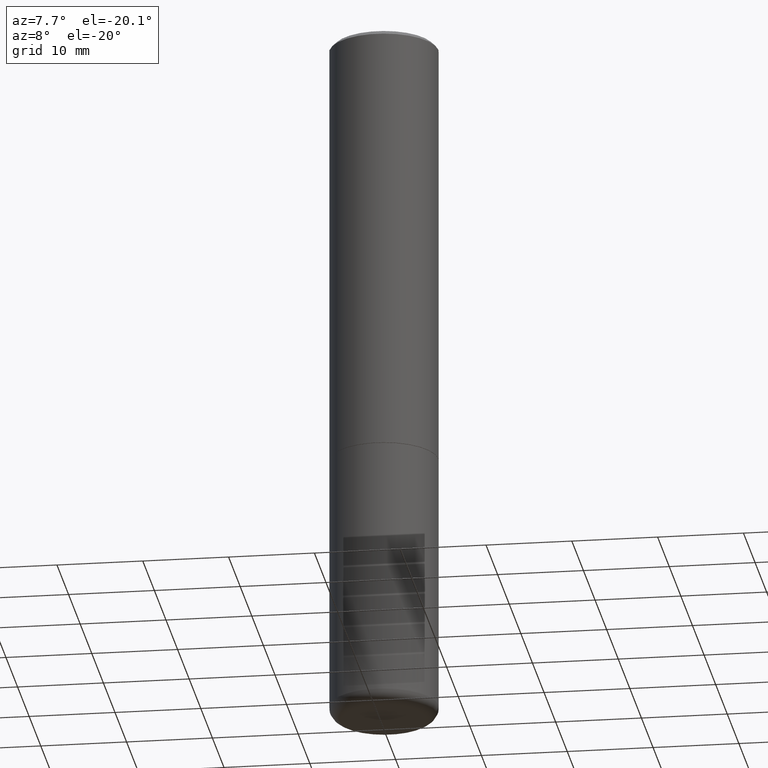
[diagram: clean part render]
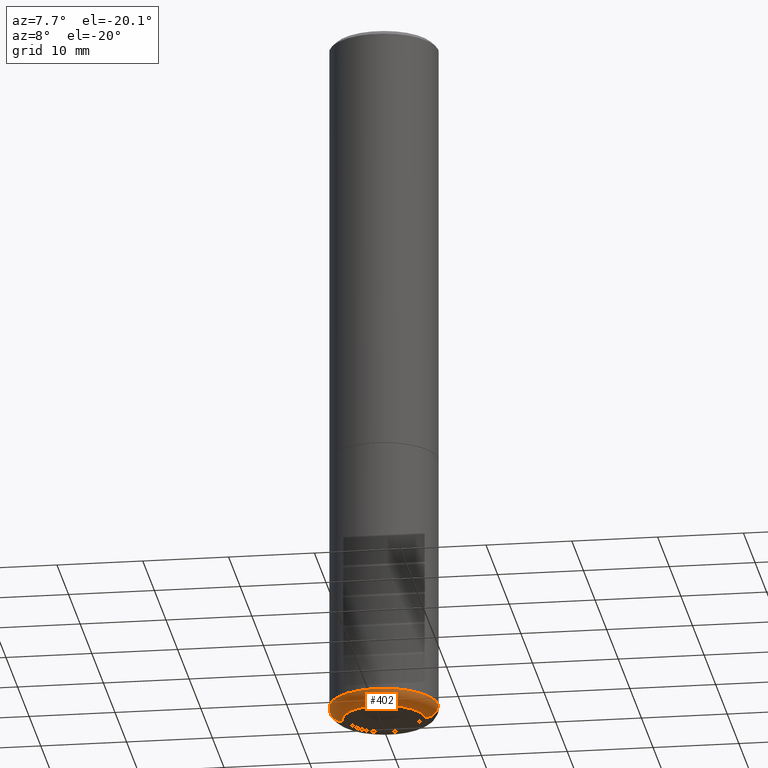
[diagram: same view with one face highlighted and labeled with its STEP entity id]
A machine part, auxiliary view. The second image highlights one B-rep face of the part: STEP entity #402.
In plain terms, the highlighted toroidal blend (fillet) surface has major radius 4.826 mm and minor (blend) radius 1.524 mm.
Its self-contained STEP definition (entity closure, byte-faithful):
#3 = DIRECTION ( 'NONE',  ( 1.000000000000000000, -6.982962677686265133E-15, 4.883557194083111780E-29 ) ) ;
#31 = DIRECTION ( 'NONE',  ( -2.445468806185136597E-29, 3.491481338843145583E-15, 1.000000000000000000 ) ) ;
#36 = FACE_OUTER_BOUND ( 'NONE', #319, .T. ) ;
#58 = ORIENTED_EDGE ( 'NONE', *, *, #160, .F. ) ;
#74 = DIRECTION ( 'NONE',  ( 1.000000000000000000, -6.982962677686262766E-15, 0.000000000000000000 ) ) ;
#77 = DIRECTION ( 'NONE',  ( -2.445468806185136597E-29, 3.491481338843145583E-15, 1.000000000000000000 ) ) ;
#84 = CARTESIAN_POINT ( 'NONE',  ( 7.947773620101693940E-29, -1.134731435124022443E-14, -3.250000000000000000 ) ) ;
#93 = CIRCLE ( 'NONE', #135, 0.2500000000000000000 ) ;
#106 = DIRECTION ( 'NONE',  ( -2.445468806185136597E-29, 3.491481338843145583E-15, 1.000000000000000000 ) ) ;
#111 = DIRECTION ( 'NONE',  ( -6.982962677686266711E-15, -1.000000000000000000, 3.491481338843145583E-15 ) ) ;
#135 = AXIS2_PLACEMENT_3D ( 'NONE', #408, #31, #74 ) ;
#140 = EDGE_CURVE ( 'NONE', #318, #397, #93, .T. ) ;
#160 = EDGE_CURVE ( 'NONE', #469, #318, #365, .T. ) ;
#177 = TOROIDAL_SURFACE ( 'NONE', #375, 0.1900000000000002243, 0.05999999999999995615 ) ;
#187 = DIRECTION ( 'NONE',  ( 7.105427357601001859E-15, 1.000000000000000000, -3.491481338843145583E-15 ) ) ;
#214 = CIRCLE ( 'NONE', #266, 0.1894764078700981180 ) ;
#226 = CIRCLE ( 'NONE', #387, 0.05999999999999997696 ) ;
#256 = CARTESIAN_POINT ( 'NONE',  ( 0.1894764078700981180, -1.267042103569917877E-14, -3.250000000000000000 ) ) ;
#262 = DIRECTION ( 'NONE',  ( 1.000000000000000000, -6.982962677686270655E-15, 0.000000000000000000 ) ) ;
#266 = AXIS2_PLACEMENT_3D ( 'NONE', #84, #77, #303 ) ;
#271 = AXIS2_PLACEMENT_3D ( 'NONE', #325, #187, #440 ) ;
#272 = ORIENTED_EDGE ( 'NONE', *, *, #435, .T. ) ;
#298 = CARTESIAN_POINT ( 'NONE',  ( 7.801051078688113029E-29, -1.113783344760428697E-14, -3.190002284616149542 ) ) ;
#303 = DIRECTION ( 'NONE',  ( 1.000000000000000000, -6.982962677686261977E-15, 0.000000000000000000 ) ) ;
#318 = VERTEX_POINT ( 'NONE', #415 ) ;
#319 = EDGE_LOOP ( 'NONE', ( #58, #272, #427, #463 ) ) ;
#325 = CARTESIAN_POINT ( 'NONE',  ( -0.1900000000000002243, -9.787802249660095416E-15, -3.190002284616149542 ) ) ;
#340 = CARTESIAN_POINT ( 'NONE',  ( 0.2500000000000000000, -1.288357411702585207E-14, -3.190002284616149542 ) ) ;
#348 = EDGE_CURVE ( 'NONE', #417, #397, #226, .T. ) ;
#365 = CIRCLE ( 'NONE', #271, 0.05999999999999997696 ) ;
#375 = AXIS2_PLACEMENT_3D ( 'NONE', #298, #106, #3 ) ;
#387 = AXIS2_PLACEMENT_3D ( 'NONE', #487, #111, #262 ) ;
#397 = VERTEX_POINT ( 'NONE', #340 ) ;
#402 = ADVANCED_FACE ( 'NONE', ( #36 ), #177, .T. ) ;
#408 = CARTESIAN_POINT ( 'NONE',  ( 7.801051078688113029E-29, -1.113783344760428697E-14, -3.190002284616149542 ) ) ;
#415 = CARTESIAN_POINT ( 'NONE',  ( -0.2500000000000000000, -7.284041223245037419E-15, -3.190002284616149542 ) ) ;
#417 = VERTEX_POINT ( 'NONE', #256 ) ;
#427 = ORIENTED_EDGE ( 'NONE', *, *, #348, .T. ) ;
#435 = EDGE_CURVE ( 'NONE', #469, #417, #214, .T. ) ;
#440 = DIRECTION ( 'NONE',  ( -1.000000000000000000, 7.105427357600993970E-15, 0.000000000000000000 ) ) ;
#452 = CARTESIAN_POINT ( 'NONE',  ( -0.1894764078700981180, -9.681240053672046838E-15, -3.250000000000000000 ) ) ;
#463 = ORIENTED_EDGE ( 'NONE', *, *, #140, .F. ) ;
#469 = VERTEX_POINT ( 'NONE', #452 ) ;
#487 = CARTESIAN_POINT ( 'NONE',  ( 0.1900000000000002243, -1.246459635636467859E-14, -3.190002284616149542 ) ) ;